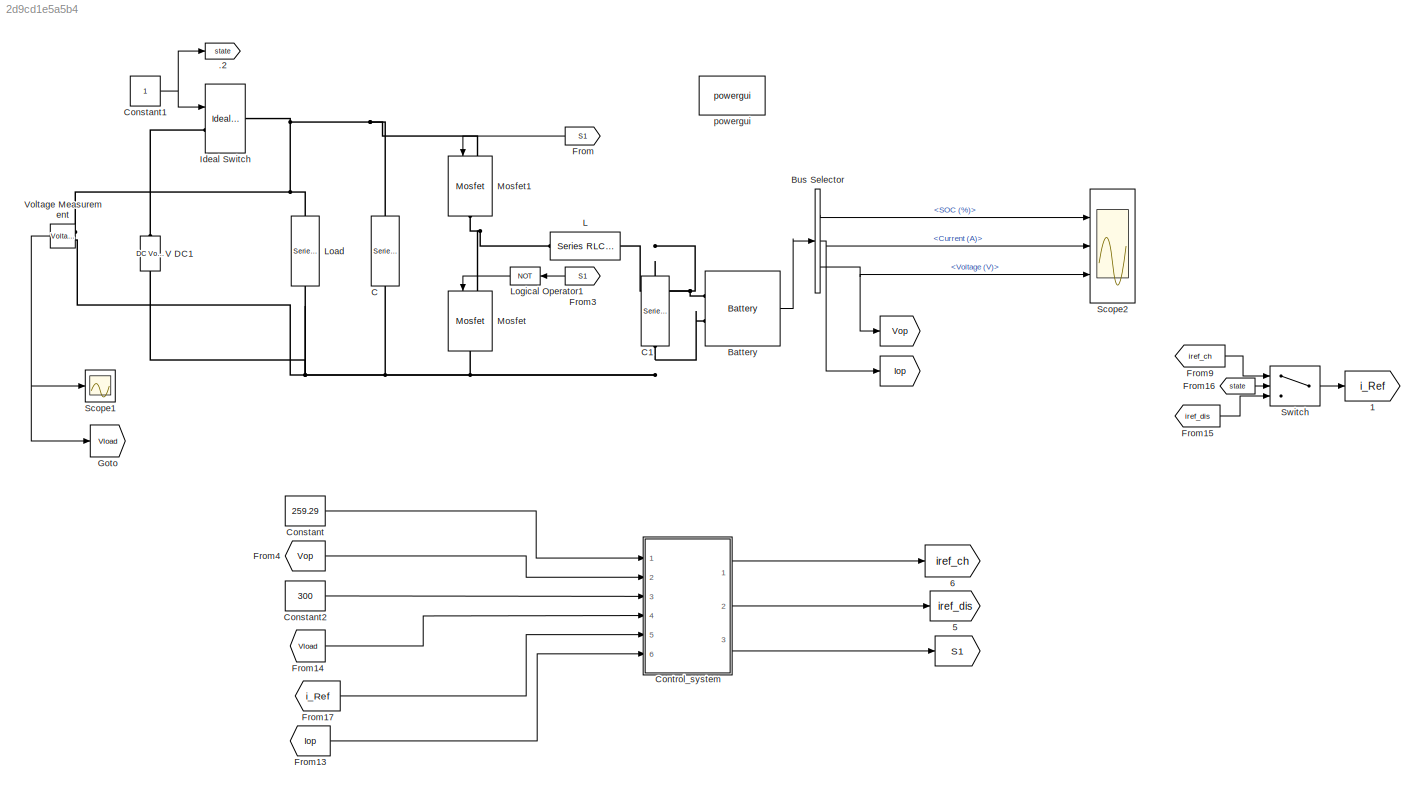
MODEL slx_2d9cd1e5a5b4
KIND model
CONFIG AbsTol = auto
CONFIG EnableMultiTasking = off
CONFIG FixedStep = auto
CONFIG MaxStep = auto
CONFIG MinStep = auto
CONFIG RelTol = 1e-3
CONFIG SampleTimeConstraint = Unconstrained
CONFIG SolverName = VariableStepAuto
CONFIG StartTime = 0.0
CONFIG StopTime = 10.0
BLOCK [Goto]     
  GotoTag = Vop
BLOCK [Goto]          
  GotoTag = Iop
BLOCK [Goto]                                   
  GotoTag = S1
BLOCK [Goto]     1
  GotoTag = i_Ref
BLOCK [Goto]     5
  GotoTag = iref_dis
BLOCK [Goto]     6
  GotoTag = iref_ch
BLOCK [Goto] .2
  GotoTag = state
BLOCK [Reference] Battery  REF=spsBatteryLib/Battery
  Ports = [0, 1, 0, 0, 0, 2]
  SourceBlock = spsBatteryLib/Battery
  SourceProductBaseCode = PS
  SourceType = Battery
BLOCK [BusSelector] Bus Selector
  OutputSignals = SOC (%),Current (A),Voltage (V)
  Ports = [1, 3]
BLOCK [Reference] C  REF=spsSeriesRLCBranchLib/Series RLC Branch
  NameLocation = left
  Ports = [0, 0, 0, 0, 0, 1, 1]
  SourceBlock = spsSeriesRLCBranchLib/Series RLC Branch
  SourceProductBaseCode = PS
  SourceType = Series RLC Branch
BLOCK [Reference] C1  REF=spsSeriesRLCBranchLib/Series RLC Branch
  NameLocation = left
  Ports = [0, 0, 0, 0, 0, 1, 1]
  SourceBlock = spsSeriesRLCBranchLib/Series RLC Branch
  SourceProductBaseCode = PS
  SourceType = Series RLC Branch
BLOCK [Constant] Constant
  Value = 259.29
BLOCK [Constant] Constant1
BLOCK [Constant] Constant2
  Value = 300
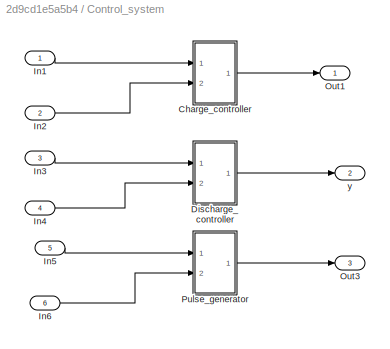
BLOCK [SubSystem] Control_system
  Ports = [6, 3]
  RequestExecContextInheritance = off
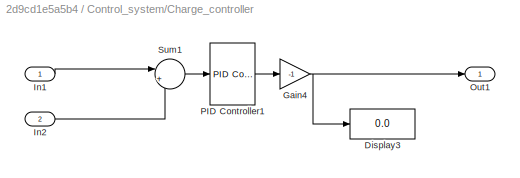
BLOCK [SubSystem] Control_system/Charge_controller
  Ports = [2, 1]
  RequestExecContextInheritance = off
BLOCK [Display] Control_system/Charge_controller/Display3
  Decimation = 1
  Ports = [1]
BLOCK [Gain] Control_system/Charge_controller/Gain4
  Gain = -1
BLOCK [Inport] Control_system/Charge_controller/In1
BLOCK [Inport] Control_system/Charge_controller/In2
  Port = 2
BLOCK [Outport] Control_system/Charge_controller/Out1
BLOCK [Reference] Control_system/Charge_controller/PID Controller1  REF=slpidlib/PID Controller
  Ports = [1, 1]
  SourceBlock = slpidlib/PID Controller
  SourceProductBaseCode = SL
  SourceType = PID 1dof
BLOCK [Sum] Control_system/Charge_controller/Sum1
  Inputs = |+-
  Ports = [2, 1]
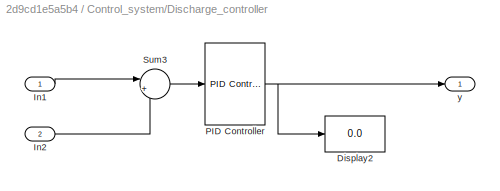
BLOCK [SubSystem] Control_system/Discharge_controller
  Ports = [2, 1]
  RequestExecContextInheritance = off
BLOCK [Display] Control_system/Discharge_controller/Display2
  Decimation = 1
  Ports = [1]
BLOCK [Inport] Control_system/Discharge_controller/In1
BLOCK [Inport] Control_system/Discharge_controller/In2
  Port = 2
BLOCK [Reference] Control_system/Discharge_controller/PID Controller  REF=slpidlib/PID Controller
  Ports = [1, 1]
  SourceBlock = slpidlib/PID Controller
  SourceProductBaseCode = SL
  SourceType = PID 1dof
BLOCK [Sum] Control_system/Discharge_controller/Sum3
  Inputs = |+-
  Ports = [2, 1]
BLOCK [Outport] Control_system/Discharge_controller/y
BLOCK [Inport] Control_system/In1
BLOCK [Inport] Control_system/In2
  Port = 2
BLOCK [Inport] Control_system/In3
  Port = 3
BLOCK [Inport] Control_system/In4
  Port = 4
BLOCK [Inport] Control_system/In5
  Port = 5
BLOCK [Inport] Control_system/In6
  Port = 6
BLOCK [Outport] Control_system/Out1
BLOCK [Outport] Control_system/Out3
  Port = 3
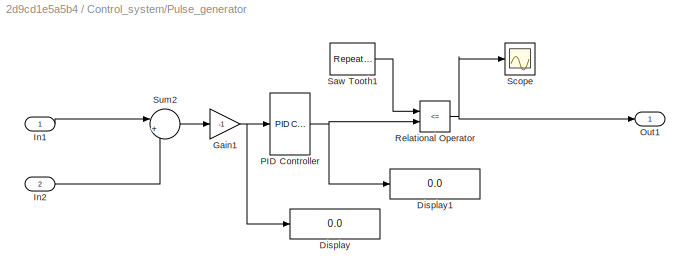
BLOCK [SubSystem] Control_system/Pulse_generator
  Ports = [2, 1]
  RequestExecContextInheritance = off
BLOCK [Display] Control_system/Pulse_generator/Display
  Decimation = 1
  Ports = [1]
BLOCK [Display] Control_system/Pulse_generator/Display1
  Decimation = 1
  Ports = [1]
BLOCK [Gain] Control_system/Pulse_generator/Gain1
  Gain = -1
BLOCK [Inport] Control_system/Pulse_generator/In1
BLOCK [Inport] Control_system/Pulse_generator/In2
  Port = 2
BLOCK [Outport] Control_system/Pulse_generator/Out1
BLOCK [Reference] Control_system/Pulse_generator/PID Controller  REF=slpidlib/PID Controller
  Ports = [1, 1]
  SourceBlock = slpidlib/PID Controller
  SourceProductBaseCode = SL
  SourceType = PID 1dof
BLOCK [RelationalOperator] Control_system/Pulse_generator/Relational Operator
  InputSameDT = off
  Operator = <=
  OutDataTypeStr = boolean
  Ports = [2, 1]
  RndMeth = Simplest
BLOCK [Reference] Control_system/Pulse_generator/Saw Tooth1  REF=simulink/Sources/Repeating
Sequence
  Ports = [0, 1]
  SourceBlock = simulink/Sources/Repeating\nSequence
  SourceProductBaseCode = SL
  SourceType = Repeating table
BLOCK [Scope] Control_system/Pulse_generator/Scope
  Floating = off
  NumInputPorts = 1
  Ports = [1]
  ScopeSpecificationString = Simulink.scopes.TimeScopeBlockCfg('CurrentConfiguration', extmgr.ConfigurationSet(extmgr.Configuration('Core','General UI',true),extmgr.Configuration('Core','Source UI',true),extmgr.Configuration('Sources','WiredSimulink',true),extmgr.Configuration('Visuals','Time Domain',true,'SerializedDisplays',{struct('MinYLimReal','-0.125','MaxYLimReal','1.125','YLabelReal','','MinYLimMag','0.00000','MaxYLimM...<+1398ch>
BLOCK [Sum] Control_system/Pulse_generator/Sum2
  Inputs = |+-
  Ports = [2, 1]
BLOCK [Outport] Control_system/y
  Port = 2
BLOCK [From] From
  GotoTag = S1
  NameLocation = top
BLOCK [From] From13
  GotoTag = Iop
BLOCK [From] From14
  GotoTag = Vload
BLOCK [From] From15
  GotoTag = iref_dis
BLOCK [From] From16
  GotoTag = state
BLOCK [From] From17
  GotoTag = i_Ref
BLOCK [From] From3
  GotoTag = S1
  NameLocation = top
BLOCK [From] From4
  GotoTag = Vop
BLOCK [From] From9
  GotoTag = iref_ch
BLOCK [Goto] Goto
  GotoTag = Vload
BLOCK [Reference] Ideal Switch  REF=spsIdealSwitchLib/Ideal Switch
  Ports = [1, 0, 0, 0, 0, 1, 1]
  SourceBlock = spsIdealSwitchLib/Ideal Switch
  SourceProductBaseCode = PS
  SourceType = Ideal Switch
BLOCK [Reference] L  REF=spsSeriesRLCBranchLib/Series RLC Branch
  Ports = [0, 0, 0, 0, 0, 1, 1]
  SourceBlock = spsSeriesRLCBranchLib/Series RLC Branch
  SourceProductBaseCode = PS
  SourceType = Series RLC Branch
BLOCK [Reference] Load  REF=spsSeriesRLCBranchLib/Series RLC Branch
  NameLocation = left
  Ports = [0, 0, 0, 0, 0, 1, 1]
  SourceBlock = spsSeriesRLCBranchLib/Series RLC Branch
  SourceProductBaseCode = PS
  SourceType = Series RLC Branch
BLOCK [Logic] Logical Operator1
  AllPortsSameDT = off
  Operator = NOT
  OutDataTypeStr = boolean
  Ports = [1, 1]
BLOCK [Reference] Mosfet  REF=spsMosfetLib/Mosfet
  NameLocation = left
  Ports = [1, 0, 0, 0, 0, 1, 1]
  SourceBlock = spsMosfetLib/Mosfet
  SourceProductBaseCode = PS
  SourceType = Mosfet
BLOCK [Reference] Mosfet1  REF=spsMosfetLib/Mosfet
  NameLocation = left
  Ports = [1, 0, 0, 0, 0, 1, 1]
  SourceBlock = spsMosfetLib/Mosfet
  SourceProductBaseCode = PS
  SourceType = Mosfet
BLOCK [Scope] Scope1
  Floating = off
  NumInputPorts = 1
  Ports = [1]
  ScopeSpecificationString = Simulink.scopes.TimeScopeBlockCfg('CurrentConfiguration', extmgr.ConfigurationSet(extmgr.Configuration('Core','General UI',true,'FigureColor',[0.972549019607843 0.972549019607843 0.972549019607843]),extmgr.Configuration('Core','Source UI',true),extmgr.Configuration('Sources','WiredSimulink',true,'DataLoggingVariableName','ScopeData1'),extmgr.Configuration('Visuals','Time Domain',true,'SerializedDi...<+1632ch>
BLOCK [Scope] Scope2
  Floating = off
  NumInputPorts = 3
  Ports = [3]
  ScopeSpecificationString = Simulink.scopes.TimeScopeBlockCfg('CurrentConfiguration', extmgr.ConfigurationSet(extmgr.Configuration('Core','General UI',true,'FigureColor',[0.972549019607843 0.972549019607843 0.972549019607843]),extmgr.Configuration('Core','Source UI',true),extmgr.Configuration('Sources','WiredSimulink',true,'DataLoggingVariableName','ScopeData2'),extmgr.Configuration('Visuals','Time Domain',true,'SerializedDi...<+3190ch>
BLOCK [Switch] Switch
  Criteria = u2 > Threshold
  InputSameDT = off
  SaturateOnIntegerOverflow = off
BLOCK [Reference] V DC1  REF=spsDCVoltageSourceLib/DC Voltage Source
  NameLocation = right
  Ports = [0, 0, 0, 0, 0, 1, 1]
  SourceBlock = spsDCVoltageSourceLib/DC Voltage Source
  SourceProductBaseCode = PS
  SourceType = DC Voltage Source
BLOCK [Reference] Voltage Measurement  REF=spsVoltageMeasurementLib/Voltage Measurement
  Ports = [0, 1, 0, 0, 0, 2]
  SourceBlock = spsVoltageMeasurementLib/Voltage Measurement
  SourceProductBaseCode = PS
  SourceType = Voltage Measurement
  UserDataPersistent = on
BLOCK [Reference] powergui  REF=spspowerguiLib/powergui
  Ports = []
  Priority = 1
  SourceBlock = spspowerguiLib/powergui
  SourceProductBaseCode = PS
  SourceType = PSB option menu block
LINE Battery:1 -> Bus Selector:1
LINE Bus Selector:1 -> Scope2:1
NET Bus Selector:2 ->          :1, Scope2:2
NET Bus Selector:3 ->     :1, Scope2:3
NET Constant1:1 -> .2:1, Ideal Switch:1
LINE Constant2:1 -> Control_system:3
LINE Constant:1 -> Control_system:1
NET Control_system/Charge_controller/Gain4:1 -> Control_system/Charge_controller/Display3:1, Control_system/Charge_controller/Out1:1
LINE Control_system/Charge_controller/In1:1 -> Control_system/Charge_controller/Sum1:1
LINE Control_system/Charge_controller/In2:1 -> Control_system/Charge_controller/Sum1:2
LINE Control_system/Charge_controller/PID Controller1:1 -> Control_system/Charge_controller/Gain4:1
LINE Control_system/Charge_controller/Sum1:1 -> Control_system/Charge_controller/PID Controller1:1
LINE Control_system/Charge_controller:1 -> Control_system/Out1:1
LINE Control_system/Discharge_controller/In1:1 -> Control_system/Discharge_controller/Sum3:1
LINE Control_system/Discharge_controller/In2:1 -> Control_system/Discharge_controller/Sum3:2
NET Control_system/Discharge_controller/PID Controller:1 -> Control_system/Discharge_controller/Display2:1, Control_system/Discharge_controller/y:1
LINE Control_system/Discharge_controller/Sum3:1 -> Control_system/Discharge_controller/PID Controller:1
LINE Control_system/Discharge_controller:1 -> Control_system/y:1
LINE Control_system/In1:1 -> Control_system/Charge_controller:1
LINE Control_system/In2:1 -> Control_system/Charge_controller:2
LINE Control_system/In3:1 -> Control_system/Discharge_controller:1
LINE Control_system/In4:1 -> Control_system/Discharge_controller:2
LINE Control_system/In5:1 -> Control_system/Pulse_generator:1
LINE Control_system/In6:1 -> Control_system/Pulse_generator:2
NET Control_system/Pulse_generator/Gain1:1 -> Control_system/Pulse_generator/Display:1, Control_system/Pulse_generator/PID Controller:1
LINE Control_system/Pulse_generator/In1:1 -> Control_system/Pulse_generator/Sum2:1
LINE Control_system/Pulse_generator/In2:1 -> Control_system/Pulse_generator/Sum2:2
NET Control_system/Pulse_generator/PID Controller:1 -> Control_system/Pulse_generator/Display1:1, Control_system/Pulse_generator/Relational Operator:2
NET Control_system/Pulse_generator/Relational Operator:1 -> Control_system/Pulse_generator/Out1:1, Control_system/Pulse_generator/Scope:1
LINE Control_system/Pulse_generator/Saw Tooth1:1 -> Control_system/Pulse_generator/Relational Operator:1
LINE Control_system/Pulse_generator/Sum2:1 -> Control_system/Pulse_generator/Gain1:1
LINE Control_system/Pulse_generator:1 -> Control_system/Out3:1
LINE Control_system:1 ->     6:1
LINE Control_system:2 ->     5:1
LINE Control_system:3 ->                                   :1
LINE From13:1 -> Control_system:6
LINE From14:1 -> Control_system:4
LINE From15:1 -> Switch:3
LINE From16:1 -> Switch:2
LINE From17:1 -> Control_system:5
LINE From3:1 -> Logical Operator1:1
LINE From4:1 -> Control_system:2
LINE From9:1 -> Switch:1
LINE From:1 -> Mosfet1:1
LINE Logical Operator1:1 -> Mosfet:1
LINE Switch:1 ->     1:1
NET Voltage Measurement:1 -> Goto:1, Scope1:1
PNET net1: Battery:LConn1 -- C1:LConn1 -- L:RConn1
PNET net2: Battery:LConn2 -- C1:RConn1 -- C:RConn1 -- Load:RConn1 -- Mosfet:RConn1 -- V DC1:LConn1 -- Voltage Measurement:LConn2
PNET net3: C:LConn1 -- Ideal Switch:RConn1 -- Load:LConn1 -- Mosfet1:LConn1 -- Voltage Measurement:LConn1
PLINE Ideal Switch:LConn1 -- V DC1:RConn1
PNET net4: L:LConn1 -- Mosfet1:RConn1 -- Mosfet:LConn1
note: NET lines group one-source signal fan-out (src -> all destinations, sorted); 1:1 wires keep LINE; PNET lines group multi-terminal physical nets as a canonical sorted terminal list (undirected conserving connections); 2-terminal nets keep the pairwise PLINE form
